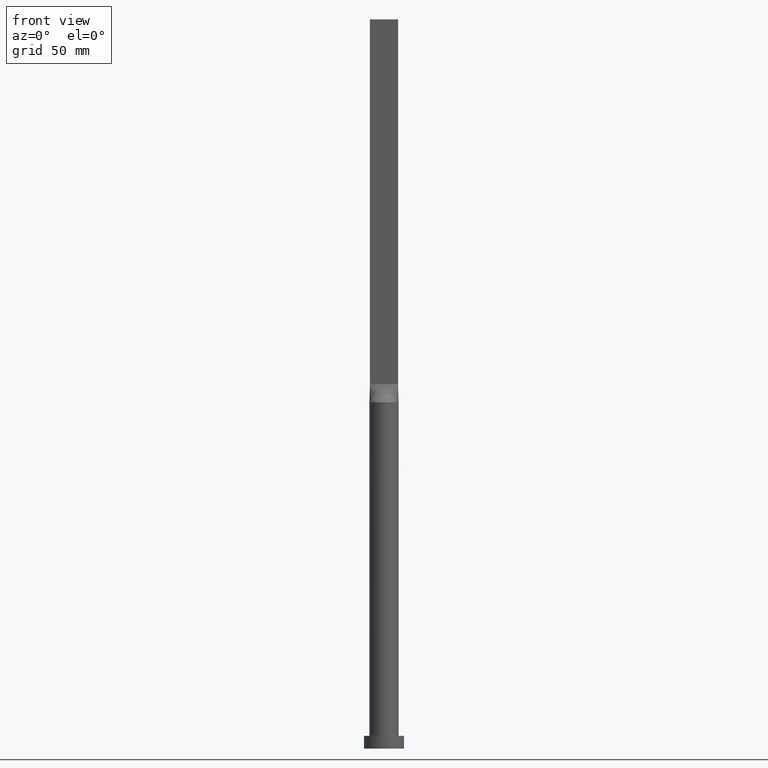
[diagram: clean part render]
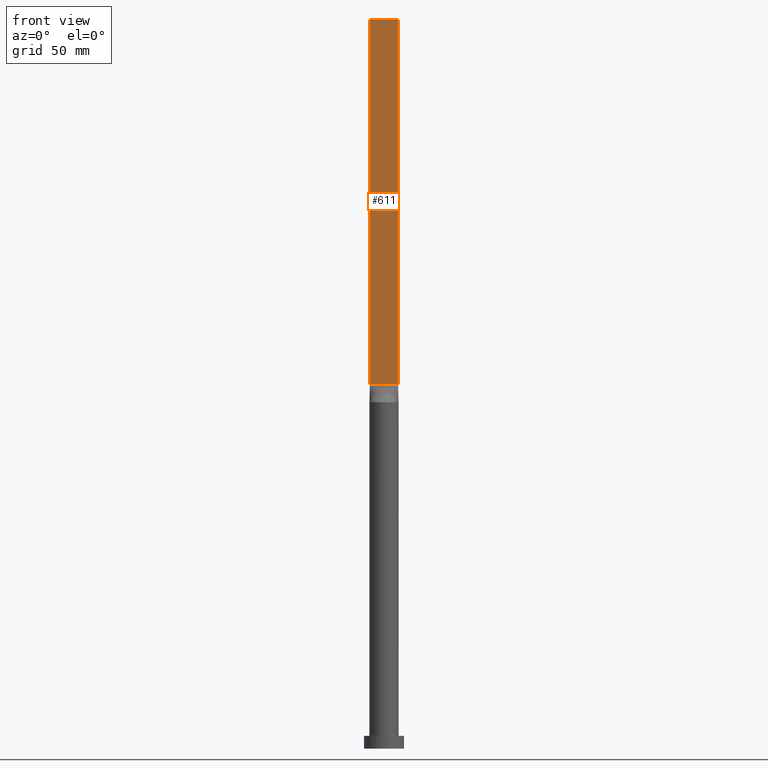
[diagram: same view with one face highlighted and labeled with its STEP entity id]
A machine part, front view. The second image highlights one B-rep face of the part: STEP entity #611.
In plain terms, the highlighted planar face has unit normal (0, 1, -0).
Its self-contained STEP definition (entity closure, byte-faithful):
#14 = EDGE_LOOP ( 'NONE', ( #358, #65, #610, #318 ) ) ;
#25 = LINE ( 'NONE', #531, #605 ) ;
#27 = DIRECTION ( 'NONE',  ( 5.595882180570345426E-17, 1.000000000000000000, -0.000000000000000000 ) ) ;
#61 = VERTEX_POINT ( 'NONE', #78 ) ;
#65 = ORIENTED_EDGE ( 'NONE', *, *, #566, .F. ) ;
#73 = VECTOR ( 'NONE', #98, 1000.000000000000000 ) ;
#78 = CARTESIAN_POINT ( 'NONE',  ( 7.750000000000000000, -1.249999999999999778, 200.0000000000000000 ) ) ;
#98 = DIRECTION ( 'NONE',  ( 1.000000000000000000, -5.595882180570345426E-17, 0.000000000000000000 ) ) ;
#201 = LINE ( 'NONE', #508, #359 ) ;
#220 = VERTEX_POINT ( 'NONE', #510 ) ;
#236 = EDGE_CURVE ( 'NONE', #256, #220, #398, .T. ) ;
#246 = CARTESIAN_POINT ( 'NONE',  ( -7.750000000000000000, -1.249999999999998890, 400.0000000000000000 ) ) ;
#256 = VERTEX_POINT ( 'NONE', #246 ) ;
#258 = VERTEX_POINT ( 'NONE', #293 ) ;
#271 = PLANE ( 'NONE',  #552 ) ;
#273 = LINE ( 'NONE', #528, #319 ) ;
#293 = CARTESIAN_POINT ( 'NONE',  ( -7.750000000000000000, -1.249999999999998890, 200.0000000000000000 ) ) ;
#318 = ORIENTED_EDGE ( 'NONE', *, *, #422, .T. ) ;
#319 = VECTOR ( 'NONE', #581, 1000.000000000000000 ) ;
#358 = ORIENTED_EDGE ( 'NONE', *, *, #463, .T. ) ;
#359 = VECTOR ( 'NONE', #401, 1000.000000000000000 ) ;
#377 = DIRECTION ( 'NONE',  ( -1.000000000000000000, 5.595882180570345426E-17, 0.000000000000000000 ) ) ;
#398 = LINE ( 'NONE', #503, #73 ) ;
#401 = DIRECTION ( 'NONE',  ( -0.000000000000000000, -0.000000000000000000, -1.000000000000000000 ) ) ;
#422 = EDGE_CURVE ( 'NONE', #256, #258, #25, .T. ) ;
#463 = EDGE_CURVE ( 'NONE', #258, #61, #273, .T. ) ;
#479 = CARTESIAN_POINT ( 'NONE',  ( -7.750000000000000000, -1.249999999999998890, 400.0000000000000000 ) ) ;
#503 = CARTESIAN_POINT ( 'NONE',  ( -7.750000000000000000, -1.249999999999998890, 400.0000000000000000 ) ) ;
#508 = CARTESIAN_POINT ( 'NONE',  ( 7.750000000000000000, -1.249999999999999778, 400.0000000000000000 ) ) ;
#510 = CARTESIAN_POINT ( 'NONE',  ( 7.750000000000000000, -1.249999999999999778, 400.0000000000000000 ) ) ;
#528 = CARTESIAN_POINT ( 'NONE',  ( -7.750000000000000000, -1.249999999999998890, 200.0000000000000000 ) ) ;
#531 = CARTESIAN_POINT ( 'NONE',  ( -7.750000000000000000, -1.249999999999998890, 400.0000000000000000 ) ) ;
#552 = AXIS2_PLACEMENT_3D ( 'NONE', #479, #27, #377 ) ;
#566 = EDGE_CURVE ( 'NONE', #220, #61, #201, .T. ) ;
#570 = DIRECTION ( 'NONE',  ( -0.000000000000000000, -0.000000000000000000, -1.000000000000000000 ) ) ;
#581 = DIRECTION ( 'NONE',  ( 1.000000000000000000, -5.595882180570345426E-17, 0.000000000000000000 ) ) ;
#605 = VECTOR ( 'NONE', #570, 1000.000000000000000 ) ;
#610 = ORIENTED_EDGE ( 'NONE', *, *, #236, .F. ) ;
#611 = ADVANCED_FACE ( 'NONE', ( #619 ), #271, .F. ) ;
#619 = FACE_OUTER_BOUND ( 'NONE', #14, .T. ) ;